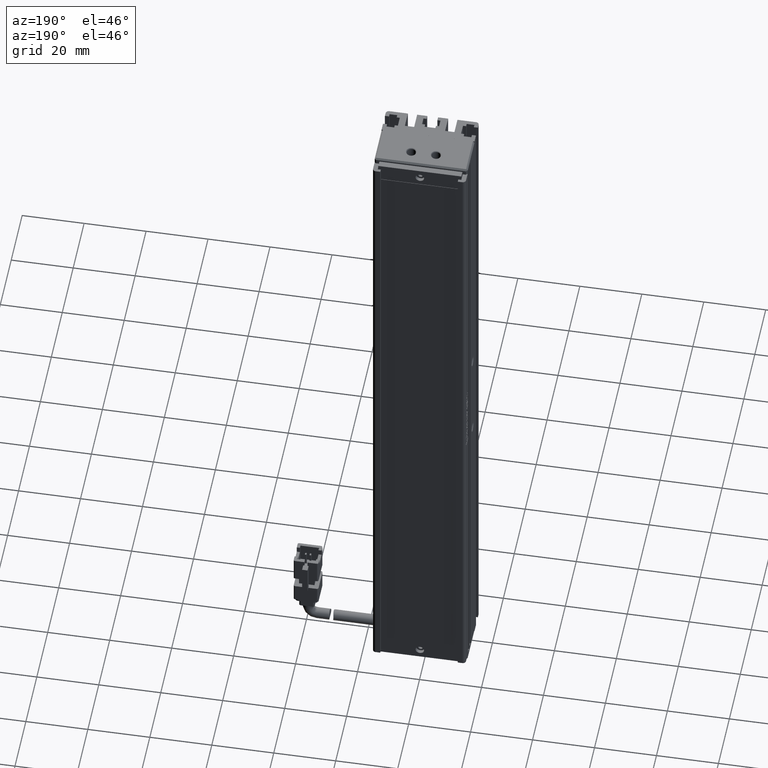
[diagram: clean part render]
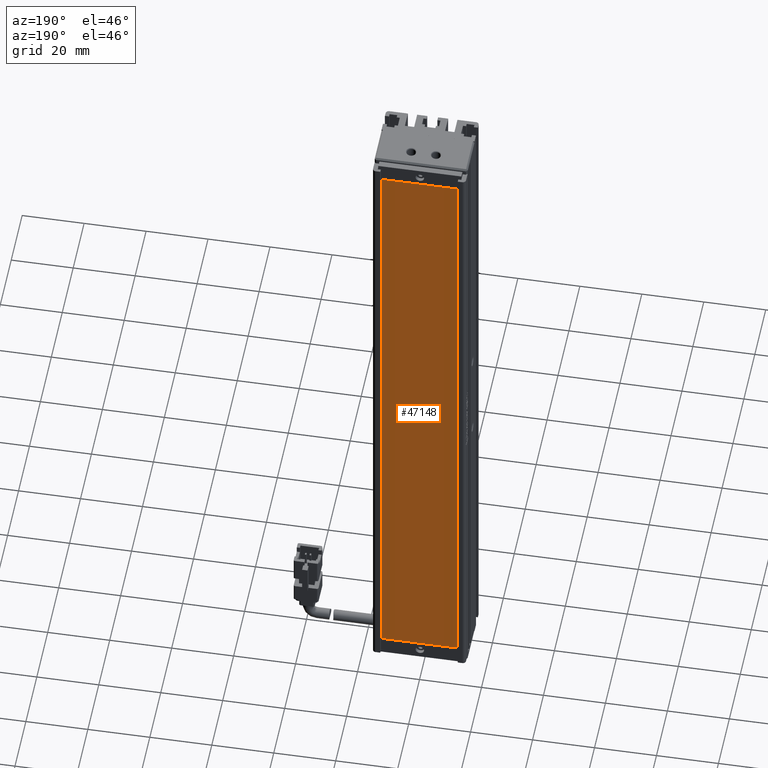
[diagram: same view with one face highlighted and labeled with its STEP entity id]
A machine part, auxiliary view. The second image highlights one B-rep face of the part: STEP entity #47148.
In plain terms, the highlighted planar face has unit normal (0, 1, 0).
Its self-contained STEP definition (entity closure, byte-faithful):
#3422 = VERTEX_POINT ( 'NONE', #10452 ) ;
#5069 = ORIENTED_EDGE ( 'NONE', *, *, #12602, .T. ) ;
#5333 = DIRECTION ( 'NONE',  ( -1.000000000000000000, 0.0000000000000000000, 0.0000000000000000000 ) ) ;
#5673 = CARTESIAN_POINT ( 'NONE',  ( 53.32537974683541600, 34.29594479660387000, -219.8499999999999900 ) ) ;
#8224 = EDGE_CURVE ( 'NONE', #3422, #35007, #39271, .T. ) ;
#9165 = CARTESIAN_POINT ( 'NONE',  ( 28.52537974683541600, 34.29594479660387000, -9.849999999999997900 ) ) ;
#10053 = VECTOR ( 'NONE', #31654, 1000.000000000000000 ) ;
#10452 = CARTESIAN_POINT ( 'NONE',  ( 53.32537974683541600, 34.29594479660387000, -9.849999999999997900 ) ) ;
#10575 = DIRECTION ( 'NONE',  ( 0.0000000000000000000, -0.0000000000000000000, 1.000000000000000000 ) ) ;
#12602 = EDGE_CURVE ( 'NONE', #35007, #42109, #23586, .T. ) ;
#13763 = EDGE_CURVE ( 'NONE', #42109, #22988, #46062, .T. ) ;
#16775 = FACE_OUTER_BOUND ( 'NONE', #47860, .T. ) ;
#16886 = VECTOR ( 'NONE', #35229, 1000.000000000000000 ) ;
#17431 = LINE ( 'NONE', #9165, #27576 ) ;
#19140 = CARTESIAN_POINT ( 'NONE',  ( 53.32537974683541600, 34.29594479660387000, -219.8499999999999900 ) ) ;
#21864 = PLANE ( 'NONE',  #49326 ) ;
#22988 = VERTEX_POINT ( 'NONE', #23899 ) ;
#23586 = LINE ( 'NONE', #5673, #42660 ) ;
#23899 = CARTESIAN_POINT ( 'NONE',  ( 28.52537974683541600, 34.29594479660387000, -9.849999999999997900 ) ) ;
#24977 = EDGE_CURVE ( 'NONE', #22988, #3422, #17431, .T. ) ;
#27576 = VECTOR ( 'NONE', #39608, 1000.000000000000000 ) ;
#28104 = ORIENTED_EDGE ( 'NONE', *, *, #8224, .T. ) ;
#29549 = CARTESIAN_POINT ( 'NONE',  ( 0.0000000000000000000, 34.29594479660387000, 0.0000000000000000000 ) ) ;
#31654 = DIRECTION ( 'NONE',  ( 0.0000000000000000000, 0.0000000000000000000, -1.000000000000000000 ) ) ;
#31783 = CARTESIAN_POINT ( 'NONE',  ( 53.32537974683541600, 34.29594479660387000, -9.849999999999997900 ) ) ;
#33408 = DIRECTION ( 'NONE',  ( 0.0000000000000000000, 1.000000000000000000, 0.0000000000000000000 ) ) ;
#35007 = VERTEX_POINT ( 'NONE', #19140 ) ;
#35229 = DIRECTION ( 'NONE',  ( 0.0000000000000000000, 0.0000000000000000000, 1.000000000000000000 ) ) ;
#35375 = CARTESIAN_POINT ( 'NONE',  ( 28.52537974683541600, 34.29594479660387000, -219.8499999999999900 ) ) ;
#35618 = ORIENTED_EDGE ( 'NONE', *, *, #24977, .T. ) ;
#36893 = ORIENTED_EDGE ( 'NONE', *, *, #13763, .T. ) ;
#39271 = LINE ( 'NONE', #31783, #10053 ) ;
#39608 = DIRECTION ( 'NONE',  ( 1.000000000000000000, 0.0000000000000000000, 0.0000000000000000000 ) ) ;
#42109 = VERTEX_POINT ( 'NONE', #42821 ) ;
#42660 = VECTOR ( 'NONE', #5333, 1000.000000000000000 ) ;
#42821 = CARTESIAN_POINT ( 'NONE',  ( 28.52537974683541600, 34.29594479660387000, -219.8499999999999900 ) ) ;
#46062 = LINE ( 'NONE', #35375, #16886 ) ;
#47148 = ADVANCED_FACE ( 'NONE', ( #16775 ), #21864, .T. ) ;
#47860 = EDGE_LOOP ( 'NONE', ( #28104, #5069, #36893, #35618 ) ) ;
#49326 = AXIS2_PLACEMENT_3D ( 'NONE', #29549, #33408, #10575 ) ;